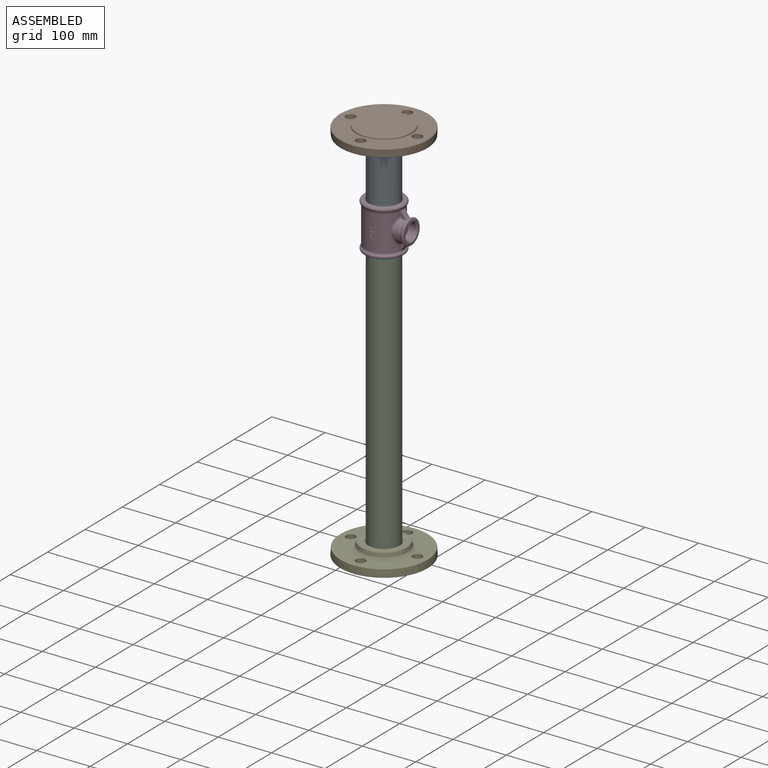
[diagram: assembled view]
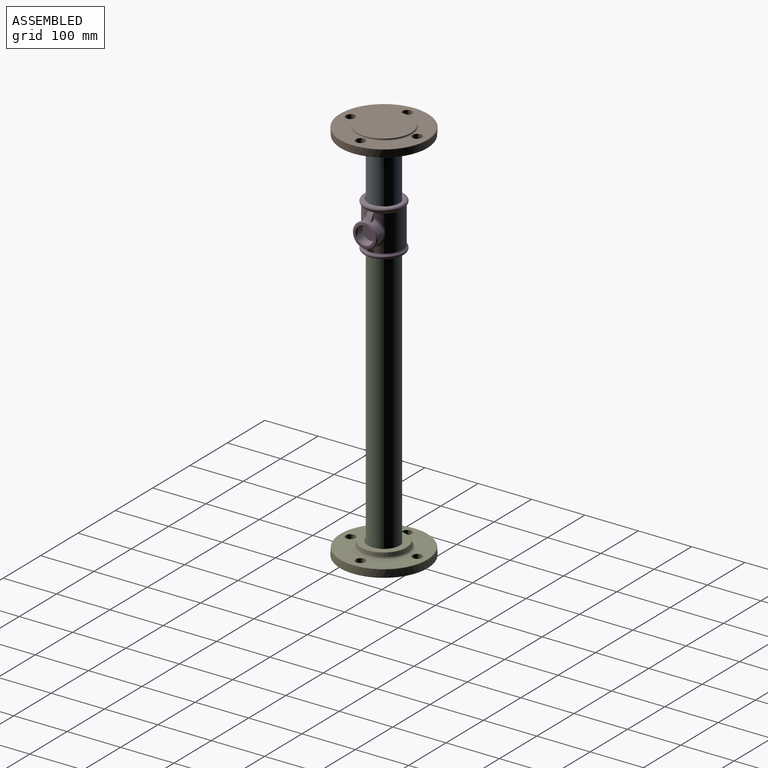
[diagram: assembled view, second angle]
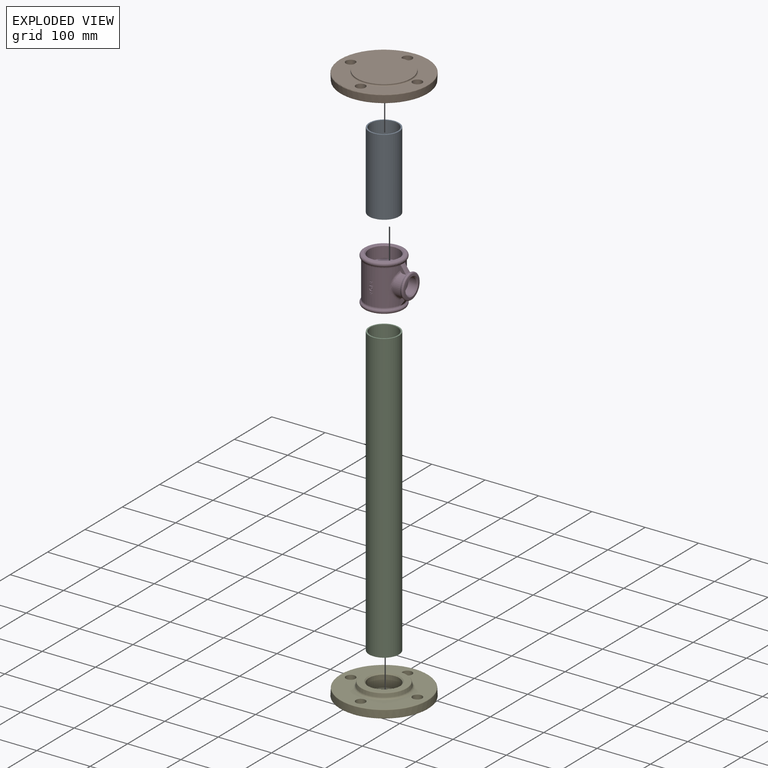
[diagram: exploded view]
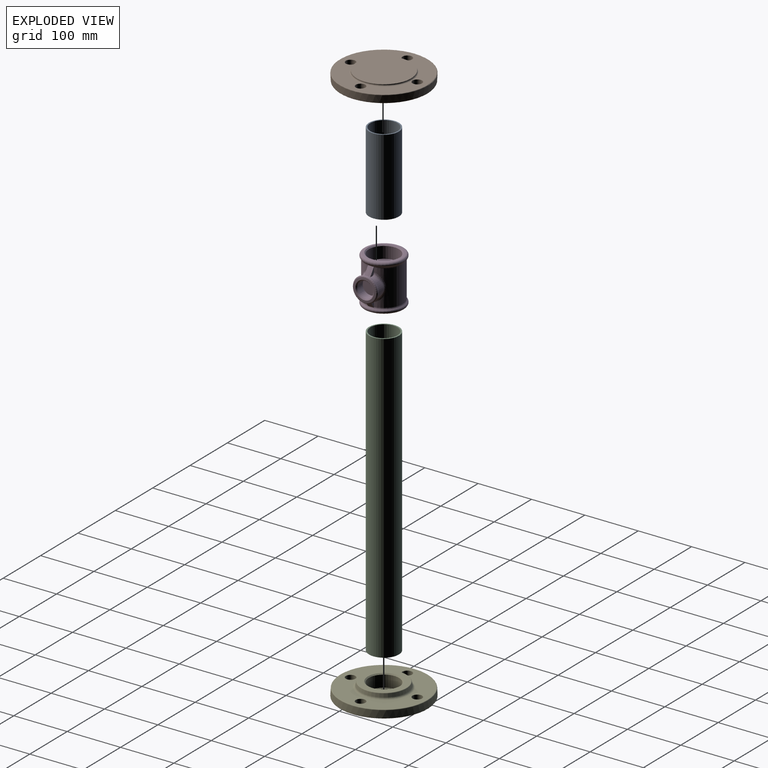
[diagram: exploded view, second angle]
ASSEMBLY  parts=5 mates=4
PART A: 4 faces, bbox 56x56x144 mm
  f0: cylinder r=25.5mm len=144mm, axis (0,0,-1), area 23071.9mm2, adj f2,f3
  f1: cylinder r=28mm len=144mm, axis (0,0,-1), area 25333.8mm2, adj f2,f3
  f2: plane 56x56mm, normal (0,0,1), area 420.2mm2, adj f0,f1
  f3: plane 56x56mm, normal (0,0,-1), area 420.2mm2, adj f0,f1
PART B: 19 faces, bbox 178.5x178.5x28.1 mm
  f0: torus R=81.45mm, axis (0,0,-1), area 837.2mm2, adj f13,f14
  f1: torus R=47.91mm, axis (0,0,-1), area 1559.7mm2, adj f4,f15
  f2: cone r=51.11mm half-angle=3deg, axis (0,0,1), area 387.2mm2, adj f3,f16
  f3: torus R=53.11mm, axis (0,0,-1), area 989.6mm2, adj f2,f14
  f4: cone r=43.26mm half-angle=12deg, axis (0,0,-1), area 1709.5mm2, adj f1,f5
  f5: torus R=41.72mm, axis (0,0,-1), area 361.8mm2, adj f4,f18
  f6: cylinder r=28.33mm len=56.66mm, axis (0,0,1), area 3920.8mm2, adj f7,f17
  f7: cone r=29.31mm half-angle=45deg, axis (0,0,1), area 513.7mm2, adj f6,f18
  f8: cylinder r=9mm len=18mm, axis (0,0,1), area 842.6mm2, adj f14,f15
  f9: cylinder r=9mm len=18mm, axis (0,0,1), area 842.6mm2, adj f14,f15
  f10: cylinder r=9mm len=18mm, axis (0,0,1), area 842.6mm2, adj f14,f15
  f11: cylinder r=9mm len=18mm, axis (0,0,1), area 842.6mm2, adj f14,f15
  f12: torus R=80.77mm, axis (0,0,-1), area 776.6mm2, adj f13,f15
  f13: cone r=82.11mm half-angle=3deg, axis (0,0,-1), area 6664.1mm2, adj f0,f12
  f14: plane 162.89x162.89mm, normal (0,0,-1), area 10959.5mm2, adj f0,f3,f8,f9,f10,f11
  f15: plane 161.54x161.54mm, normal (0,0,1), area 12265.4mm2, adj f1,f8,f9,f10,f11,f12
  f16: plane 102.11x102.11mm, normal (0,0,-1), area 8188.1mm2, adj f2
  f17: plane 56.66x56.66mm, normal (0,0,1), area 2521.1mm2, adj f6
  f18: plane 83.43x83.43mm, normal (0,0,1), area 2583mm2, adj f5,f7
PART C: 4 faces, bbox 56x56x540 mm
  f0: cylinder r=25.5mm len=540mm, axis (0,0,-1), area 86519.5mm2, adj f2,f3
  f1: cylinder r=28mm len=540mm, axis (0,0,-1), area 95001.8mm2, adj f2,f3
  f2: plane 56x56mm, normal (0,0,1), area 420.2mm2, adj f0,f1
  f3: plane 56x56mm, normal (0,0,-1), area 420.2mm2, adj f0,f1
PART D: 89 faces, bbox 94.6x85.7x88.1 mm
  f0: torus R=33.8mm, axis (0,0,1), area 2126.1mm2, adj f4,f41,f51,f73,f75,f80
  f1: torus R=33.8mm, axis (0,0,1), area 2082.6mm2, adj f2,f31,f33,f72,f74,f79
  f2: torus R=39.6mm, axis (0,0,1), area 772mm2, adj f1,f9,f12,f14,f16,f17,f31,f33
  f3: torus R=20.8mm, axis (-1,0,0), area 826.7mm2, adj f5,f55
  f4: torus R=39.6mm, axis (0,0,1), area 772mm2, adj f0,f9,f13,f18,f19,f20,f41,f51
  f5: torus R=25.15mm, axis (-1,0,0), area 447.9mm2, adj f3,f6,f12,f13,f14,f15,f16,f17
  f6: cylinder r=21.15mm len=40.84mm, axis (1,0,0), area 543.8mm2, adj f5,f10,f11,f12,f13
  f7: cylinder r=3.6mm len=7.2mm, axis (0,1,0), area 29.6mm2, adj f9,f38,f40,f76
  f8: cylinder r=2.18mm len=4.37mm, axis (0,1,0), area 16.9mm2, adj f9,f38,f76,f77
  f9: cylinder r=35.1mm len=70.2mm, axis (0,0,-1), area 12125.5mm2, adj f2,f4,f7,f8,f10,f11,f12,f13
  f10: bspline ~25.38x17.39mm, area 178.7mm2, adj f6,f9,f11,f13
  f11: bspline ~25.39x17.39mm, area 177.5mm2, adj f6,f9,f10,f12
  f12: plane 14.23x10.12mm, normal (0,1,0), area 68.1mm2, adj f2,f5,f6,f9,f11,f16
  f13: plane 14.33x10.23mm, normal (0,1,0), area 68.2mm2, adj f4,f5,f6,f9,f10,f19
  f14: plane 14.19x9.94mm, normal (0.82,-0.05,-0.57), area 91.5mm2, adj f2,f5,f16,f17
  f15: cylinder r=21.15mm len=40.84mm, axis (1,0,0), area 517.4mm2, adj f5,f17,f20,f21,f22
  f16: plane 14.19x9.94mm, normal (0.82,0.05,-0.57), area 91.5mm2, adj f2,f5,f12,f14
  f17: plane 14.34x10.24mm, normal (0,-1,0), area 68.4mm2, adj f2,f5,f9,f14,f15,f21
  f18: plane 14.19x9.94mm, normal (0.82,-0.05,0.57), area 91.5mm2, adj f4,f5,f19,f20
  f19: plane 14.19x9.94mm, normal (0.82,0.05,0.57), area 91.5mm2, adj f4,f5,f13,f18
  f20: plane 14.32x10.21mm, normal (0,-1,0), area 68.1mm2, adj f4,f5,f9,f15,f18,f22
  f21: bspline ~25.38x17.39mm, area 178.7mm2, adj f9,f15,f17,f22
  f22: bspline ~25.38x17.39mm, area 177.6mm2, adj f9,f15,f20,f21
  f23: plane 1.92x1.49mm, normal (1,0,0), area 2.9mm2, adj f9,f47,f48,f69
  f24: plane 6.89x1.5mm, normal (0,0,1), area 9.9mm2, adj f9,f49,f64,f70
  f25: plane 1.5x1.25mm, normal (0,0,-1), area 1.9mm2, adj f9,f50,f63,f71
  f26: plane 1.92x1.49mm, normal (0,0,-1), area 2.8mm2, adj f9,f46,f50,f71
  f27: plane 5.72x2.35mm, normal (-0.71,0.05,0.71), area 13.2mm2, adj f9,f33,f43,f72
  f28: plane 5.72x2.35mm, normal (-0.71,-0.05,-0.71), area 13.2mm2, adj f9,f34,f41,f73
  f29: plane 1.92x1.49mm, normal (1,0,0), area 2.9mm2, adj f9,f36,f44,f69
  f30: plane 1.5x1.25mm, normal (0,0,1), area 1.9mm2, adj f9,f32,f57,f71
  f31: plane 20.85x1.95mm, normal (0,-1,0), area 34.4mm2, adj f1,f2,f9,f43,f74
  f32: plane 1.92x1.49mm, normal (1,0,0), area 2.9mm2, adj f9,f30,f35,f71
  f33: plane 20.85x1.95mm, normal (0,1,0), area 34.4mm2, adj f1,f2,f9,f27,f72
  f34: plane 5.72x2.35mm, normal (-0.71,0.05,-0.71), area 13.2mm2, adj f9,f28,f51,f75
  f35: plane 1.92x1.49mm, normal (0,0,1), area 2.8mm2, adj f9,f32,f46,f71
  f36: plane 1.92x1.49mm, normal (0,0,-1), area 2.8mm2, adj f9,f29,f37,f69
  f37: plane 1.4x1.25mm, normal (1,0,0), area 1.7mm2, adj f9,f36,f47,f69
  f38: plane 1.48x1.23mm, normal (-0.87,0,-0.5), area 2.1mm2, adj f7,f8,f9,f76
  f39: plane 1.5x1.32mm, normal (0,0,1), area 2mm2, adj f9,f40,f76,f77
  f40: plane 3.58x1.5mm, normal (1,0,0), area 5.4mm2, adj f7,f9,f39,f76
  f41: plane 20.85x1.95mm, normal (0,-1,0), area 34.4mm2, adj f0,f4,f9,f28,f73
  f42: plane 1.5x1.32mm, normal (0,0,-1), area 2mm2, adj f9,f52,f65,f70
  f43: plane 5.72x2.35mm, normal (-0.71,-0.05,0.71), area 13.2mm2, adj f9,f27,f31,f74
  f44: plane 1.5x1.25mm, normal (0,0,-1), area 1.9mm2, adj f9,f29,f68,f69
  f45: plane 2.52x1.43mm, normal (-1,0,0), area 3.6mm2, adj f9,f53,f54,f70
  f46: plane 1.4x1.25mm, normal (1,0,0), area 1.7mm2, adj f9,f26,f35,f71
  f47: plane 1.92x1.49mm, normal (0,0,1), area 2.8mm2, adj f9,f23,f37,f69
  f48: plane 1.5x1.25mm, normal (0,0,1), area 1.9mm2, adj f9,f23,f67,f69
  f49: plane 4.08x1.32mm, normal (1,0,0), area 5.4mm2, adj f9,f24,f54,f70
  f50: plane 1.92x1.49mm, normal (1,0,0), area 2.9mm2, adj f9,f25,f26,f71
  f51: plane 20.85x1.95mm, normal (0,1,0), area 34.4mm2, adj f0,f4,f9,f34,f75
  f52: plane 2.52x1.49mm, normal (1,0,0), area 3.8mm2, adj f9,f42,f53,f70
  f53: plane 1.49x1.37mm, normal (0,0,-1), area 2mm2, adj f9,f45,f52,f70
  f54: plane 1.43x1.32mm, normal (0,0,-1), area 1.8mm2, adj f9,f45,f49,f70
  f55: cone r=21.02mm half-angle=85deg, axis (-1,0,0), area 471mm2, adj f3,f78
  f56: plane 1.92x1.5mm, normal (0,0,1), area 2.8mm2, adj f9,f57,f62,f71
  f57: plane 1.92x1.5mm, normal (-1,0,0), area 2.9mm2, adj f9,f30,f56,f71
  f58: plane 2.88x1.5mm, normal (0,0,-1), area 4.1mm2, adj f9,f64,f65,f70
  f59: plane 1.42x1.25mm, normal (-1,0,0), area 1.8mm2, adj f9,f61,f66,f69
  f60: plane 1.92x1.5mm, normal (0,0,-1), area 2.8mm2, adj f9,f62,f63,f71
  f61: plane 1.92x1.5mm, normal (0,0,-1), area 2.8mm2, adj f9,f59,f68,f69
  f62: plane 1.42x1.25mm, normal (-1,0,0), area 1.8mm2, adj f9,f56,f60,f71
  f63: plane 1.92x1.5mm, normal (-1,0,0), area 2.9mm2, adj f9,f25,f60,f71
  f64: plane 1.56x1.34mm, normal (-1,0,0), area 2.1mm2, adj f9,f24,f58,f70
  f65: plane 2.52x1.5mm, normal (-1,0,0), area 3.8mm2, adj f9,f42,f58,f70
  f66: plane 1.92x1.5mm, normal (0,0,1), area 2.8mm2, adj f9,f59,f67,f69
  f67: plane 1.92x1.5mm, normal (-1,0,0), area 2.9mm2, adj f9,f48,f66,f69
  f68: plane 1.92x1.5mm, normal (-1,0,0), area 2.9mm2, adj f9,f44,f61,f69
  f69: plane 5.09x5.09mm, normal (0,-1,0), area 11.1mm2, adj f23,f29,f36,f37,f44,f47,f48,f59
  f70: plane 6.89x4.08mm, normal (0,-1,0), area 17.4mm2, adj f24,f42,f45,f49,f52,f53,f54,f58
  f71: plane 5.09x5.09mm, normal (0,-1,0), area 11.1mm2, adj f25,f26,f30,f32,f35,f46,f50,f56
  f72: plane 19.03x5.5mm, normal (-1,0.05,0), area 102.8mm2, adj f1,f27,f33,f74
  f73: plane 19.03x5.5mm, normal (-1,-0.05,0), area 103.6mm2, adj f0,f28,f41,f75
  f74: plane 19.03x5.5mm, normal (-1,-0.05,0), area 103.6mm2, adj f1,f31,f43,f72
  f75: plane 19.03x5.5mm, normal (-1,0.05,0), area 103.6mm2, adj f0,f34,f51,f73
  f76: plane 7.2x7.2mm, normal (0,-1,0), area 26.9mm2, adj f7,f8,f38,f39,f40,f77
  f77: plane 1.96x1.49mm, normal (-1,0,0), area 2.9mm2, adj f8,f9,f39,f76
  f78: cone r=17.1mm half-angle=45deg, axis (1,0,0), area 280mm2, adj f55,f81
  f79: cone r=34.15mm half-angle=85deg, axis (0,0,1), area 782.2mm2, adj f1,f82
  f80: cone r=34.15mm half-angle=85deg, axis (0,0,-1), area 782.2mm2, adj f0,f83
  f81: cylinder r=15.15mm len=30.29mm, axis (1,0,0), area 1410.5mm2, adj f78,f84
  f82: cone r=30.3mm half-angle=45deg, axis (0,0,-1), area 513.7mm2, adj f79,f85
  f83: cone r=30.3mm half-angle=45deg, axis (0,0,1), area 513.7mm2, adj f80,f86
  f84: plane 30.29x30.29mm, normal (1,0,0), area 720.6mm2, adj f81
  f85: cylinder r=28.33mm len=56.66mm, axis (0,0,-1), area 3875.6mm2, adj f82,f87
  f86: cylinder r=28.33mm len=56.66mm, axis (0,0,1), area 3875.6mm2, adj f83,f88
  f87: plane 56.66x56.66mm, normal (0,0,-1), area 2521.1mm2, adj f85
  f88: plane 56.66x56.66mm, normal (0,0,1), area 2521.1mm2, adj f86
PART E: same geometry as B
PLACE A t=(141.04,-57.55,-69.91)mm
PLACE B rot(axis=(1,0,0),180deg) t=(141.04,-57.55,79.19)mm
PLACE C t=(141.04,-57.55,-650.31)mm
PLACE D t=(141.04,-57.55,-90.11)mm
PLACE E t=(141.04,-57.55,-655.41)mm
MATE fastened C.f0 <-> D.f85  axis (0,0,1) through (141.04,-57.55,-110.31)mm
MATE fastened B.f0 <-> A.f0  axis (0,0,-1) through (141.04,-57.55,74.09)mm
MATE fastened C.f0 <-> E.f0  axis (0,0,-1) through (141.04,-57.55,-650.31)mm
MATE fastened D.f4 <-> A.f0  axis (0,0,1) through (141.04,-57.55,-69.91)mm
